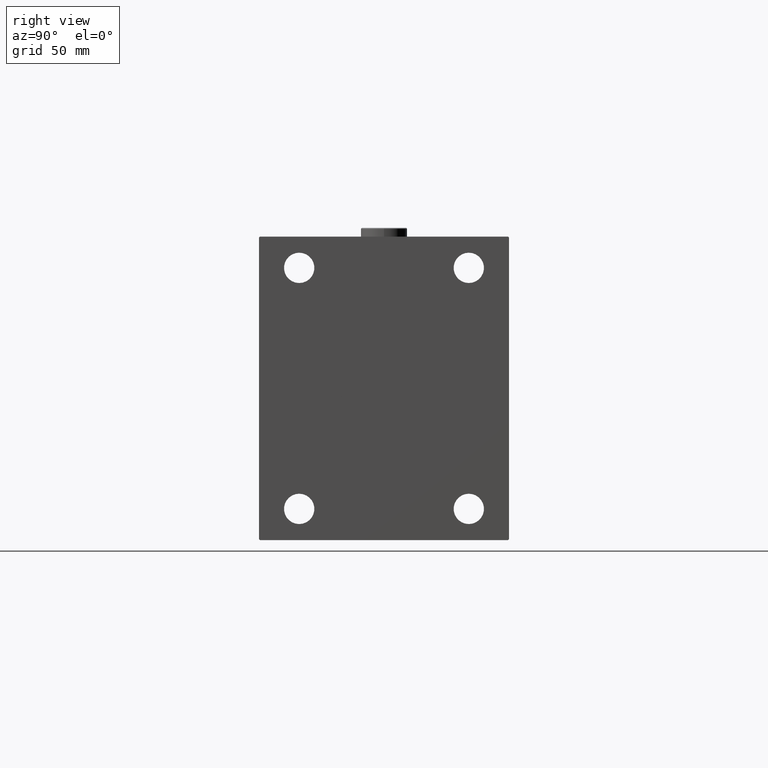
[diagram: clean part render]
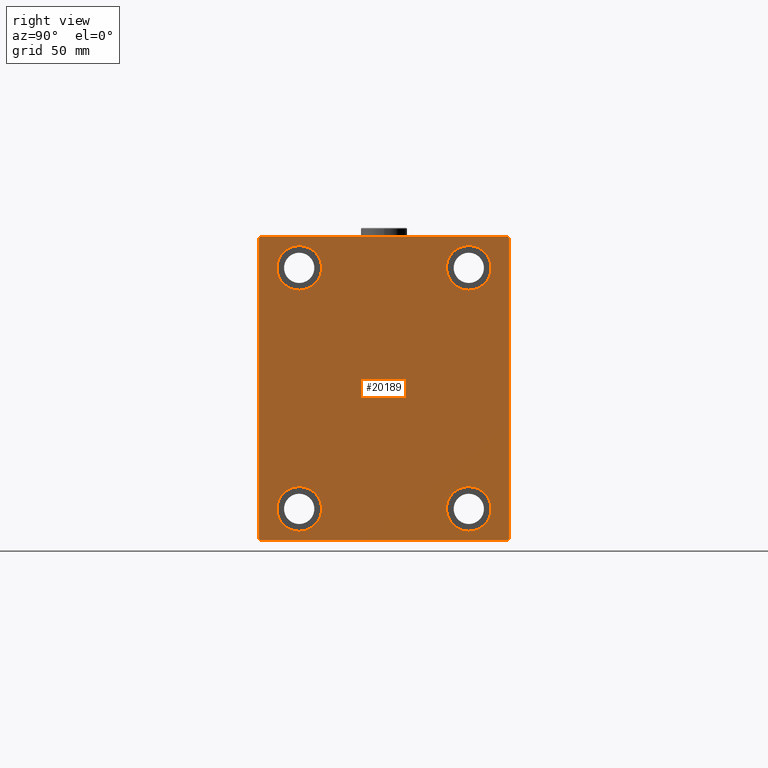
[diagram: same view with one face highlighted and labeled with its STEP entity id]
A machine part, right view. The second image highlights one B-rep face of the part: STEP entity #20189.
In plain terms, the highlighted planar face has unit normal (1, 0, 0).
Its self-contained STEP definition (entity closure, byte-faithful):
#32 = CARTESIAN_POINT ( 'NONE',  ( 255.0000000000000000, 47.50000000000000711, -67.50000000000000000 ) ) ;
#278 = DIRECTION ( 'NONE',  ( 0.000000000000000000, -8.163404592832031500E-17, 1.000000000000000000 ) ) ;
#637 = VERTEX_POINT ( 'NONE', #26914 ) ;
#876 = ORIENTED_EDGE ( 'NONE', *, *, #37208, .T. ) ;
#886 = DIRECTION ( 'NONE',  ( 1.000000000000000000, 0.000000000000000000, 0.000000000000000000 ) ) ;
#1103 = ORIENTED_EDGE ( 'NONE', *, *, #6076, .T. ) ;
#1121 = FACE_BOUND ( 'NONE', #45684, .T. ) ;
#1148 = ORIENTED_EDGE ( 'NONE', *, *, #42812, .T. ) ;
#1239 = CARTESIAN_POINT ( 'NONE',  ( 255.0000000000000000, -47.49999999999997868, 80.00000000000001421 ) ) ;
#1848 = LINE ( 'NONE', #9902, #37579 ) ;
#2449 = DIRECTION ( 'NONE',  ( 0.000000000000000000, 1.000000000000000000, 9.912705577010325549E-17 ) ) ;
#2510 = AXIS2_PLACEMENT_3D ( 'NONE', #39259, #7184, #36161 ) ;
#3951 = CARTESIAN_POINT ( 'NONE',  ( 255.0000000000000000, 70.00000000000001421, 85.00000000000000000 ) ) ;
#4015 = VECTOR ( 'NONE', #10428, 1000.000000000000000 ) ;
#4090 = CARTESIAN_POINT ( 'NONE',  ( 255.0000000000000000, 47.50000000000000711, 67.50000000000000000 ) ) ;
#4464 = FACE_BOUND ( 'NONE', #21216, .T. ) ;
#4640 = VERTEX_POINT ( 'NONE', #34086 ) ;
#4934 = CARTESIAN_POINT ( 'NONE',  ( 255.0000000000000000, -47.49999999999999289, -67.50000000000000000 ) ) ;
#5007 = VERTEX_POINT ( 'NONE', #1239 ) ;
#5933 = CARTESIAN_POINT ( 'NONE',  ( 255.0000000000000000, -69.99999999999998579, 84.50000000000001421 ) ) ;
#6076 = EDGE_CURVE ( 'NONE', #4640, #23617, #15266, .T. ) ;
#6113 = CIRCLE ( 'NONE', #35707, 12.50000000000001066 ) ;
#6231 = CARTESIAN_POINT ( 'NONE',  ( 255.0000000000000000, -69.50000000000001421, -85.00000000000002842 ) ) ;
#7136 = VECTOR ( 'NONE', #278, 1000.000000000000000 ) ;
#7184 = DIRECTION ( 'NONE',  ( -1.000000000000000000, -0.000000000000000000, -0.000000000000000000 ) ) ;
#7323 = ORIENTED_EDGE ( 'NONE', *, *, #8469, .T. ) ;
#8016 = ORIENTED_EDGE ( 'NONE', *, *, #33405, .T. ) ;
#8469 = EDGE_CURVE ( 'NONE', #45027, #39151, #25331, .T. ) ;
#8839 = VERTEX_POINT ( 'NONE', #40233 ) ;
#9524 = DIRECTION ( 'NONE',  ( 0.000000000000000000, 0.000000000000000000, 1.000000000000000000 ) ) ;
#9780 = ORIENTED_EDGE ( 'NONE', *, *, #34417, .T. ) ;
#9902 = CARTESIAN_POINT ( 'NONE',  ( 255.0000000000000000, -77.25000000000001421, 77.25000000000001421 ) ) ;
#10428 = DIRECTION ( 'NONE',  ( 0.000000000000000000, 0.000000000000000000, -1.000000000000000000 ) ) ;
#10737 = CARTESIAN_POINT ( 'NONE',  ( 255.0000000000000000, 47.50000000000000711, -55.00000000000000711 ) ) ;
#11119 = ORIENTED_EDGE ( 'NONE', *, *, #11956, .T. ) ;
#11217 = DIRECTION ( 'NONE',  ( 0.000000000000000000, 0.000000000000000000, 1.000000000000000000 ) ) ;
#11658 = CARTESIAN_POINT ( 'NONE',  ( 255.0000000000000000, -47.49999999999999289, -67.50000000000000000 ) ) ;
#11956 = EDGE_CURVE ( 'NONE', #35515, #29058, #37684, .T. ) ;
#11991 = CARTESIAN_POINT ( 'NONE',  ( 255.0000000000000000, -69.50000000000001421, 84.99999999999998579 ) ) ;
#12055 = PLANE ( 'NONE',  #46281 ) ;
#13609 = CARTESIAN_POINT ( 'NONE',  ( 255.0000000000000000, -69.99999999999998579, -85.00000000000002842 ) ) ;
#13711 = DIRECTION ( 'NONE',  ( 0.000000000000000000, -0.7071067811865474617, -0.7071067811865474617 ) ) ;
#14243 = CARTESIAN_POINT ( 'NONE',  ( 255.0000000000000000, 77.25000000000099476, 77.24999999999884892 ) ) ;
#14838 = VECTOR ( 'NONE', #21772, 1000.000000000000000 ) ;
#15109 = CARTESIAN_POINT ( 'NONE',  ( 255.0000000000000000, -69.99999999999998579, 84.99999999999998579 ) ) ;
#15266 = CIRCLE ( 'NONE', #22823, 12.49999999999999645 ) ;
#15625 = FACE_BOUND ( 'NONE', #31404, .T. ) ;
#15716 = CARTESIAN_POINT ( 'NONE',  ( 255.0000000000000000, -77.25000000000099476, -77.24999999999884892 ) ) ;
#16138 = ORIENTED_EDGE ( 'NONE', *, *, #40118, .T. ) ;
#16151 = CIRCLE ( 'NONE', #2510, 12.50000000000001066 ) ;
#16921 = VECTOR ( 'NONE', #18921, 999.9999999999998863 ) ;
#17389 = DIRECTION ( 'NONE',  ( 0.000000000000000000, 0.000000000000000000, 1.000000000000000000 ) ) ;
#18739 = DIRECTION ( 'NONE',  ( -0.000000000000000000, -0.7071067811865376918, 0.7071067811865573427 ) ) ;
#18878 = CARTESIAN_POINT ( 'NONE',  ( 255.0000000000000000, -47.49999999999997868, 55.00000000000000000 ) ) ;
#18921 = DIRECTION ( 'NONE',  ( -0.000000000000000000, 0.7071067811865376918, 0.7071067811865574537 ) ) ;
#18949 = DIRECTION ( 'NONE',  ( 0.000000000000000000, 0.000000000000000000, -1.000000000000000000 ) ) ;
#19176 = AXIS2_PLACEMENT_3D ( 'NONE', #40751, #26724, #37660 ) ;
#19205 = CIRCLE ( 'NONE', #45794, 12.49999999999999645 ) ;
#19502 = LINE ( 'NONE', #44694, #7136 ) ;
#19644 = DIRECTION ( 'NONE',  ( 0.000000000000000000, 0.000000000000000000, 1.000000000000000000 ) ) ;
#19945 = ORIENTED_EDGE ( 'NONE', *, *, #25790, .T. ) ;
#20121 = CARTESIAN_POINT ( 'NONE',  ( 255.0000000000000000, 47.50000000000000711, -67.50000000000000000 ) ) ;
#20189 = ADVANCED_FACE ( 'NONE', ( #1121, #41276, #4464, #15625, #44381 ), #12055, .T. ) ;
#21216 = EDGE_LOOP ( 'NONE', ( #11119, #39666 ) ) ;
#21772 = DIRECTION ( 'NONE',  ( 0.000000000000000000, -1.000000000000000000, -9.912705577010325549E-17 ) ) ;
#21867 = VERTEX_POINT ( 'NONE', #6231 ) ;
#22519 = CARTESIAN_POINT ( 'NONE',  ( 255.0000000000000000, 0.000000000000000000, 0.000000000000000000 ) ) ;
#22752 = DIRECTION ( 'NONE',  ( 0.000000000000000000, 0.000000000000000000, 1.000000000000000000 ) ) ;
#22823 = AXIS2_PLACEMENT_3D ( 'NONE', #11658, #40639, #36839 ) ;
#23012 = ORIENTED_EDGE ( 'NONE', *, *, #38264, .T. ) ;
#23228 = EDGE_LOOP ( 'NONE', ( #7323, #23719, #16138, #9780, #19945, #876, #1148, #23924 ) ) ;
#23298 = CARTESIAN_POINT ( 'NONE',  ( 255.0000000000000000, 70.00000000000002842, -84.50000000000009948 ) ) ;
#23617 = VERTEX_POINT ( 'NONE', #45463 ) ;
#23719 = ORIENTED_EDGE ( 'NONE', *, *, #45153, .T. ) ;
#23780 = CARTESIAN_POINT ( 'NONE',  ( 255.0000000000000000, -47.49999999999997868, 67.50000000000000000 ) ) ;
#23924 = ORIENTED_EDGE ( 'NONE', *, *, #29442, .T. ) ;
#24242 = DIRECTION ( 'NONE',  ( -1.000000000000000000, -0.000000000000000000, -0.000000000000000000 ) ) ;
#25331 = LINE ( 'NONE', #3951, #14838 ) ;
#25586 = CARTESIAN_POINT ( 'NONE',  ( 255.0000000000000000, 77.25000000000103739, -77.24999999999890576 ) ) ;
#25790 = EDGE_CURVE ( 'NONE', #21867, #8839, #41887, .T. ) ;
#26724 = DIRECTION ( 'NONE',  ( -1.000000000000000000, -0.000000000000000000, -0.000000000000000000 ) ) ;
#26876 = EDGE_CURVE ( 'NONE', #5007, #30857, #6113, .T. ) ;
#26914 = CARTESIAN_POINT ( 'NONE',  ( 255.0000000000000000, 70.00000000000001421, 84.50000000000001421 ) ) ;
#29058 = VERTEX_POINT ( 'NONE', #44217 ) ;
#29442 = EDGE_CURVE ( 'NONE', #637, #45027, #43924, .T. ) ;
#29653 = DIRECTION ( 'NONE',  ( -1.000000000000000000, -0.000000000000000000, -0.000000000000000000 ) ) ;
#29873 = AXIS2_PLACEMENT_3D ( 'NONE', #20121, #31037, #19644 ) ;
#29930 = VERTEX_POINT ( 'NONE', #10737 ) ;
#29972 = LINE ( 'NONE', #15716, #38939 ) ;
#30202 = DIRECTION ( 'NONE',  ( -0.000000000000000000, 0.7071067811865376918, -0.7071067811865573427 ) ) ;
#30594 = CARTESIAN_POINT ( 'NONE',  ( 255.0000000000000000, 69.50000000000004263, 85.00000000000000000 ) ) ;
#30619 = ORIENTED_EDGE ( 'NONE', *, *, #44921, .T. ) ;
#30857 = VERTEX_POINT ( 'NONE', #18878 ) ;
#31037 = DIRECTION ( 'NONE',  ( -1.000000000000000000, -0.000000000000000000, -0.000000000000000000 ) ) ;
#31106 = VECTOR ( 'NONE', #2449, 1000.000000000000000 ) ;
#31404 = EDGE_LOOP ( 'NONE', ( #1103, #30619 ) ) ;
#31552 = ORIENTED_EDGE ( 'NONE', *, *, #26876, .T. ) ;
#32953 = LINE ( 'NONE', #25586, #16921 ) ;
#33405 = EDGE_CURVE ( 'NONE', #30857, #5007, #16151, .T. ) ;
#34086 = CARTESIAN_POINT ( 'NONE',  ( 255.0000000000000000, -47.49999999999999289, -80.00000000000000000 ) ) ;
#34417 = EDGE_CURVE ( 'NONE', #35758, #21867, #29972, .T. ) ;
#35445 = DIRECTION ( 'NONE',  ( -1.000000000000000000, -0.000000000000000000, -0.000000000000000000 ) ) ;
#35515 = VERTEX_POINT ( 'NONE', #44616 ) ;
#35707 = AXIS2_PLACEMENT_3D ( 'NONE', #23780, #24242, #9524 ) ;
#35758 = VERTEX_POINT ( 'NONE', #37376 ) ;
#36029 = CIRCLE ( 'NONE', #39050, 12.49999999999999645 ) ;
#36161 = DIRECTION ( 'NONE',  ( 0.000000000000000000, 0.000000000000000000, 1.000000000000000000 ) ) ;
#36839 = DIRECTION ( 'NONE',  ( 0.000000000000000000, 0.000000000000000000, 1.000000000000000000 ) ) ;
#36946 = CARTESIAN_POINT ( 'NONE',  ( 255.0000000000000000, 47.50000000000000711, -80.00000000000000000 ) ) ;
#37033 = EDGE_LOOP ( 'NONE', ( #8016, #31552 ) ) ;
#37208 = EDGE_CURVE ( 'NONE', #8839, #46580, #32953, .T. ) ;
#37376 = CARTESIAN_POINT ( 'NONE',  ( 255.0000000000000000, -69.99999999999998579, -84.50000000000004263 ) ) ;
#37579 = VECTOR ( 'NONE', #13711, 1000.000000000000114 ) ;
#37660 = DIRECTION ( 'NONE',  ( 0.000000000000000000, 0.000000000000000000, 1.000000000000000000 ) ) ;
#37684 = CIRCLE ( 'NONE', #46798, 12.50000000000001066 ) ;
#38264 = EDGE_CURVE ( 'NONE', #29930, #40291, #45808, .T. ) ;
#38939 = VECTOR ( 'NONE', #30202, 1000.000000000000114 ) ;
#39050 = AXIS2_PLACEMENT_3D ( 'NONE', #4934, #29653, #22752 ) ;
#39151 = VERTEX_POINT ( 'NONE', #11991 ) ;
#39259 = CARTESIAN_POINT ( 'NONE',  ( 255.0000000000000000, -47.49999999999997868, 67.50000000000000000 ) ) ;
#39659 = CIRCLE ( 'NONE', #19176, 12.50000000000001066 ) ;
#39666 = ORIENTED_EDGE ( 'NONE', *, *, #40184, .T. ) ;
#40118 = EDGE_CURVE ( 'NONE', #45608, #35758, #42746, .T. ) ;
#40184 = EDGE_CURVE ( 'NONE', #29058, #35515, #39659, .T. ) ;
#40233 = CARTESIAN_POINT ( 'NONE',  ( 255.0000000000000000, 69.50000000000012790, -85.00000000000001421 ) ) ;
#40291 = VERTEX_POINT ( 'NONE', #36946 ) ;
#40324 = VECTOR ( 'NONE', #18739, 1000.000000000000114 ) ;
#40639 = DIRECTION ( 'NONE',  ( -1.000000000000000000, -0.000000000000000000, -0.000000000000000000 ) ) ;
#40751 = CARTESIAN_POINT ( 'NONE',  ( 255.0000000000000000, 47.50000000000000711, 67.50000000000000000 ) ) ;
#41276 = FACE_BOUND ( 'NONE', #37033, .T. ) ;
#41884 = EDGE_CURVE ( 'NONE', #40291, #29930, #19205, .T. ) ;
#41887 = LINE ( 'NONE', #13609, #31106 ) ;
#42717 = ORIENTED_EDGE ( 'NONE', *, *, #41884, .T. ) ;
#42746 = LINE ( 'NONE', #15109, #4015 ) ;
#42812 = EDGE_CURVE ( 'NONE', #46580, #637, #19502, .T. ) ;
#43067 = DIRECTION ( 'NONE',  ( -1.000000000000000000, -0.000000000000000000, -0.000000000000000000 ) ) ;
#43924 = LINE ( 'NONE', #14243, #40324 ) ;
#44217 = CARTESIAN_POINT ( 'NONE',  ( 255.0000000000000000, 47.50000000000000711, 80.00000000000001421 ) ) ;
#44381 = FACE_OUTER_BOUND ( 'NONE', #23228, .T. ) ;
#44616 = CARTESIAN_POINT ( 'NONE',  ( 255.0000000000000000, 47.50000000000000711, 55.00000000000000000 ) ) ;
#44694 = CARTESIAN_POINT ( 'NONE',  ( 255.0000000000000000, 70.00000000000002842, -85.00000000000001421 ) ) ;
#44921 = EDGE_CURVE ( 'NONE', #23617, #4640, #36029, .T. ) ;
#45027 = VERTEX_POINT ( 'NONE', #30594 ) ;
#45153 = EDGE_CURVE ( 'NONE', #39151, #45608, #1848, .T. ) ;
#45463 = CARTESIAN_POINT ( 'NONE',  ( 255.0000000000000000, -47.49999999999999289, -55.00000000000000711 ) ) ;
#45608 = VERTEX_POINT ( 'NONE', #5933 ) ;
#45684 = EDGE_LOOP ( 'NONE', ( #42717, #23012 ) ) ;
#45794 = AXIS2_PLACEMENT_3D ( 'NONE', #32, #35445, #17389 ) ;
#45808 = CIRCLE ( 'NONE', #29873, 12.49999999999999645 ) ;
#46281 = AXIS2_PLACEMENT_3D ( 'NONE', #22519, #886, #18949 ) ;
#46580 = VERTEX_POINT ( 'NONE', #23298 ) ;
#46798 = AXIS2_PLACEMENT_3D ( 'NONE', #4090, #43067, #11217 ) ;